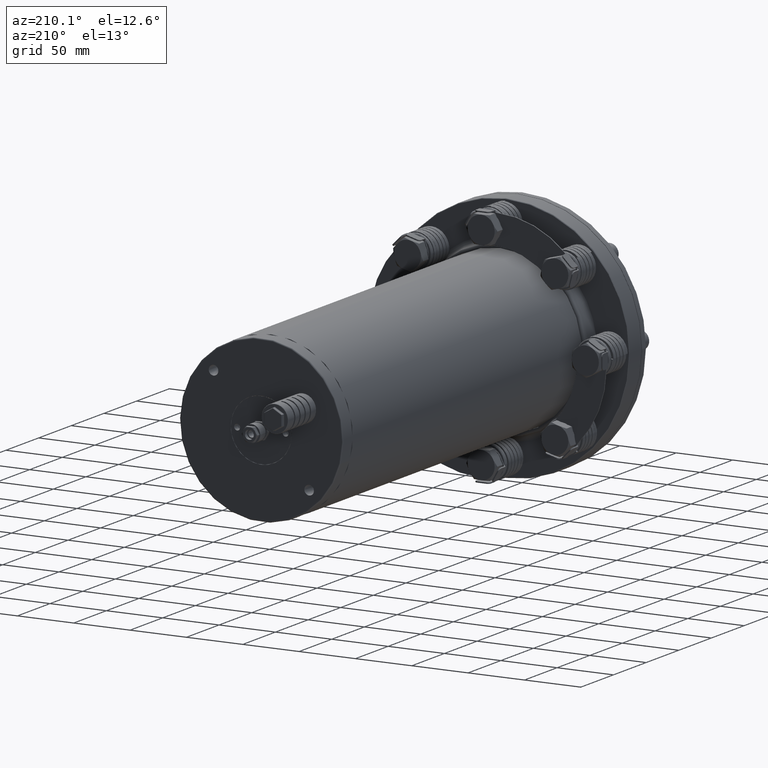
[diagram: clean part render]
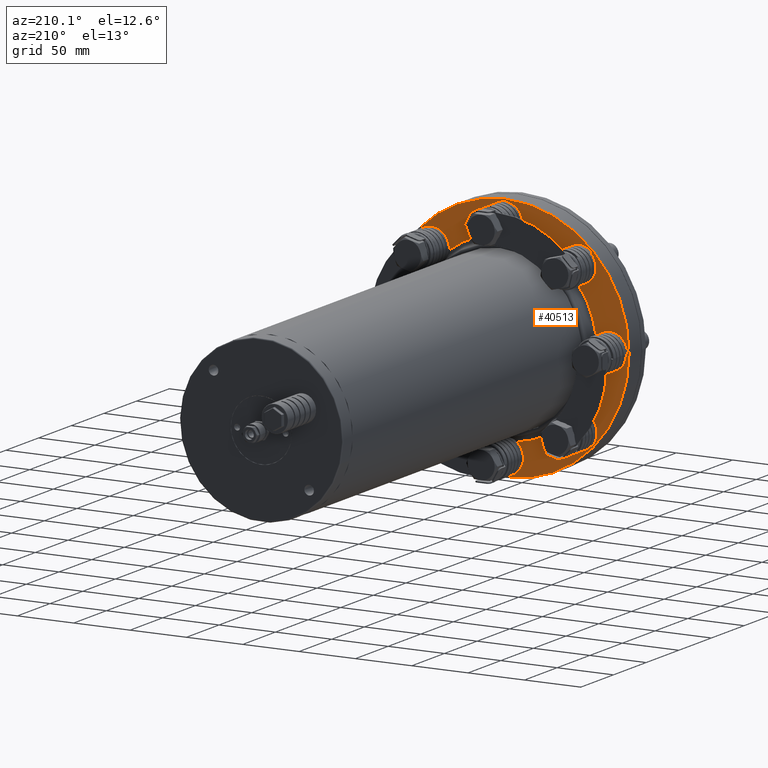
[diagram: same view with one face highlighted and labeled with its STEP entity id]
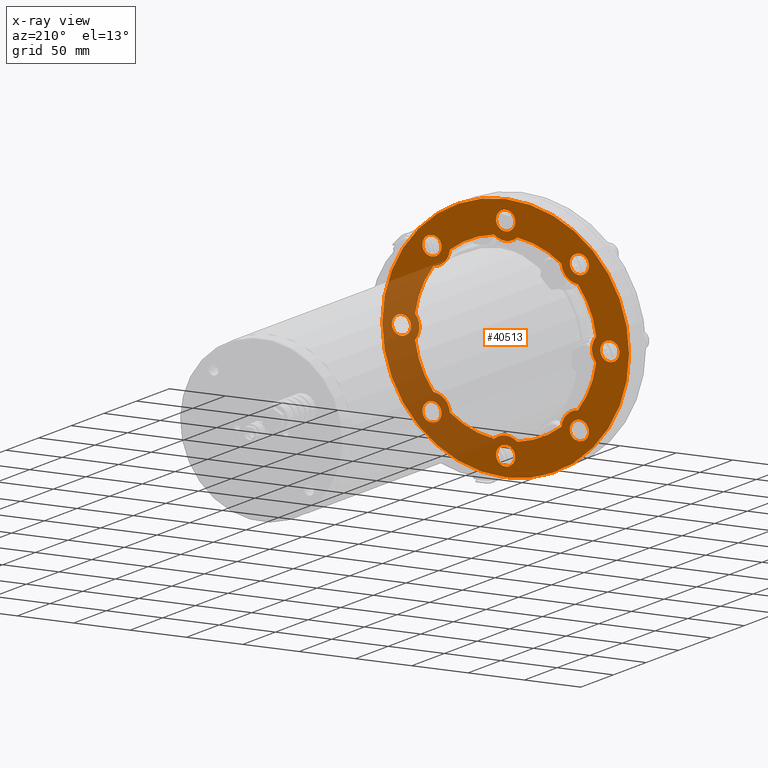
[diagram: x-ray of the same camera — body ghosted, the highlighted face saturated]
A machine part, auxiliary view. The second image highlights one B-rep face of the part: STEP entity #40513.
The next image is the same camera in x-ray: the body ghosted, the highlighted face saturated — about 28% of this face is hidden behind the body in this view.
In plain terms, the highlighted planar face has unit normal (0, 1, 0).
Its self-contained STEP definition (entity closure, byte-faithful):
#6 = CARTESIAN_POINT ( 'NONE',  ( 65.40737725975620300, 25.00000000000000000, -56.90737725975510800 ) ) ;
#15 = CARTESIAN_POINT ( 'NONE',  ( -1.303471104155284600E-012, 25.00000000000000000, 101.0000000000000000 ) ) ;
#23 = CARTESIAN_POINT ( 'NONE',  ( 65.40737725975481000, 25.00000000000000000, 73.90737725975640200 ) ) ;
#29 = CARTESIAN_POINT ( 'NONE',  ( 92.50000000000000000, 25.00000000000000000, 8.500000000000985900 ) ) ;
#30 = CARTESIAN_POINT ( 'NONE',  ( 0.0000000000000000000, 25.00000000000000000, -109.5000000000000000 ) ) ;
#36 = CARTESIAN_POINT ( 'NONE',  ( 49.45699317056620000, 25.00000000000000000, -64.14831117439159400 ) ) ;
#74 = CARTESIAN_POINT ( 'NONE',  ( 65.40737725975620300, 25.00000000000000000, -73.90737725975510800 ) ) ;
#77 = CARTESIAN_POINT ( 'NONE',  ( 64.14831117439250400, 25.00000000000000000, -49.45699317056499900 ) ) ;
#79 = CARTESIAN_POINT ( 'NONE',  ( 6.661338147750940300E-013, 25.00000000000000000, -76.50000000000000000 ) ) ;
#82 = CARTESIAN_POINT ( 'NONE',  ( 80.33108108108099500, 25.00000000000000000, 10.38833058507454000 ) ) ;
#149 = CARTESIAN_POINT ( 'NONE',  ( -64.14831117439179300, 25.00000000000000000, -49.45699317056590200 ) ) ;
#151 = CARTESIAN_POINT ( 'NONE',  ( -92.50000000000000000, 25.00000000000000000, 8.499999999999660700 ) ) ;
#2220 = VERTEX_POINT ( 'NONE', #50755 ) ;
#2224 = VERTEX_POINT ( 'NONE', #50752 ) ;
#2244 = VERTEX_POINT ( 'NONE', #50742 ) ;
#2258 = VERTEX_POINT ( 'NONE', #50737 ) ;
#2274 = VERTEX_POINT ( 'NONE', #50730 ) ;
#2282 = VERTEX_POINT ( 'NONE', #50726 ) ;
#2293 = VERTEX_POINT ( 'NONE', #50720 ) ;
#2320 = VERTEX_POINT ( 'NONE', #50851 ) ;
#2322 = VERTEX_POINT ( 'NONE', #50850 ) ;
#2353 = VERTEX_POINT ( 'NONE', #51002 ) ;
#2409 = VERTEX_POINT ( 'NONE', #23 ) ;
#2419 = VERTEX_POINT ( 'NONE', #30 ) ;
#2421 = VERTEX_POINT ( 'NONE', #29 ) ;
#2473 = VERTEX_POINT ( 'NONE', #6 ) ;
#2487 = VERTEX_POINT ( 'NONE', #15 ) ;
#2501 = VERTEX_POINT ( 'NONE', #36 ) ;
#2521 = VERTEX_POINT ( 'NONE', #74 ) ;
#2526 = VERTEX_POINT ( 'NONE', #77 ) ;
#2530 = VERTEX_POINT ( 'NONE', #79 ) ;
#2536 = VERTEX_POINT ( 'NONE', #82 ) ;
#2667 = VERTEX_POINT ( 'NONE', #149 ) ;
#2675 = VERTEX_POINT ( 'NONE', #151 ) ;
#5918 = FACE_BOUND ( 'NONE', #63173, .T. ) ;
#5923 = FACE_BOUND ( 'NONE', #63328, .T. ) ;
#5925 = FACE_BOUND ( 'NONE', #63325, .T. ) ;
#5927 = FACE_BOUND ( 'NONE', #63315, .T. ) ;
#5929 = FACE_OUTER_BOUND ( 'NONE', #63321, .T. ) ;
#5931 = FACE_BOUND ( 'NONE', #63326, .T. ) ;
#5934 = FACE_BOUND ( 'NONE', #63324, .T. ) ;
#5936 = FACE_BOUND ( 'NONE', #63327, .T. ) ;
#5938 = FACE_BOUND ( 'NONE', #63168, .T. ) ;
#5940 = FACE_BOUND ( 'NONE', #63329, .T. ) ;
#6728 = AXIS2_PLACEMENT_3D ( 'NONE', #29643, #29644, #29645 ) ;
#6730 = AXIS2_PLACEMENT_3D ( 'NONE', #29646, #29647, #29648 ) ;
#6731 = AXIS2_PLACEMENT_3D ( 'NONE', #29659, #29660, #29661 ) ;
#6732 = AXIS2_PLACEMENT_3D ( 'NONE', #29650, #29654, #29655 ) ;
#6734 = AXIS2_PLACEMENT_3D ( 'NONE', #29662, #29663, #29664 ) ;
#6738 = AXIS2_PLACEMENT_3D ( 'NONE', #29687, #29688, #29689 ) ;
#6744 = AXIS2_PLACEMENT_3D ( 'NONE', #29704, #29705, #29706 ) ;
#6745 = AXIS2_PLACEMENT_3D ( 'NONE', #29721, #29723, #29724 ) ;
#6749 = AXIS2_PLACEMENT_3D ( 'NONE', #30153, #30154, #30155 ) ;
#6750 = AXIS2_PLACEMENT_3D ( 'NONE', #30132, #30133, #30134 ) ;
#6757 = AXIS2_PLACEMENT_3D ( 'NONE', #30193, #30195, #30196 ) ;
#6758 = AXIS2_PLACEMENT_3D ( 'NONE', #30190, #30191, #30192 ) ;
#6760 = AXIS2_PLACEMENT_3D ( 'NONE', #30184, #30198, #30199 ) ;
#6761 = AXIS2_PLACEMENT_3D ( 'NONE', #30194, #30200, #30201 ) ;
#6765 = AXIS2_PLACEMENT_3D ( 'NONE', #30306, #30313, #30314 ) ;
#6766 = AXIS2_PLACEMENT_3D ( 'NONE', #30309, #30315, #30316 ) ;
#6768 = AXIS2_PLACEMENT_3D ( 'NONE', #30323, #30324, #30325 ) ;
#6769 = AXIS2_PLACEMENT_3D ( 'NONE', #30330, #30331, #30332 ) ;
#6770 = AXIS2_PLACEMENT_3D ( 'NONE', #30326, #30328, #30329 ) ;
#6773 = AXIS2_PLACEMENT_3D ( 'NONE', #30375, #30377, #30378 ) ;
#6774 = AXIS2_PLACEMENT_3D ( 'NONE', #30372, #30379, #30380 ) ;
#6775 = AXIS2_PLACEMENT_3D ( 'NONE', #30422, #30423, #30424 ) ;
#6776 = AXIS2_PLACEMENT_3D ( 'NONE', #30438, #30439, #30440 ) ;
#6777 = AXIS2_PLACEMENT_3D ( 'NONE', #30384, #30429, #30430 ) ;
#6780 = AXIS2_PLACEMENT_3D ( 'NONE', #30441, #30446, #30447 ) ;
#6783 = AXIS2_PLACEMENT_3D ( 'NONE', #30452, #30453, #30454 ) ;
#6787 = AXIS2_PLACEMENT_3D ( 'NONE', #30502, #30508, #30509 ) ;
#6793 = AXIS2_PLACEMENT_3D ( 'NONE', #23311, #23322, #23323 ) ;
#6798 = AXIS2_PLACEMENT_3D ( 'NONE', #73360, #73364, #73366 ) ;
#6801 = AXIS2_PLACEMENT_3D ( 'NONE', #73759, #73859, #73861 ) ;
#6802 = AXIS2_PLACEMENT_3D ( 'NONE', #73852, #73866, #73868 ) ;
#6857 = AXIS2_PLACEMENT_3D ( 'NONE', #29013, #29021, #29022 ) ;
#6859 = AXIS2_PLACEMENT_3D ( 'NONE', #29000, #29011, #29012 ) ;
#6860 = AXIS2_PLACEMENT_3D ( 'NONE', #29003, #29014, #29015 ) ;
#6870 = AXIS2_PLACEMENT_3D ( 'NONE', #67053, #67054, #67055 ) ;
#8780 = ORIENTED_EDGE ( 'NONE', *, *, #59350, .T. ) ;
#8788 = ORIENTED_EDGE ( 'NONE', *, *, #59354, .T. ) ;
#8790 = ORIENTED_EDGE ( 'NONE', *, *, #59360, .F. ) ;
#8792 = ORIENTED_EDGE ( 'NONE', *, *, #59701, .F. ) ;
#8793 = ORIENTED_EDGE ( 'NONE', *, *, #59365, .F. ) ;
#8796 = ORIENTED_EDGE ( 'NONE', *, *, #59272, .T. ) ;
#8797 = ORIENTED_EDGE ( 'NONE', *, *, #59332, .F. ) ;
#8798 = ORIENTED_EDGE ( 'NONE', *, *, #59321, .F. ) ;
#8803 = ORIENTED_EDGE ( 'NONE', *, *, #59344, .F. ) ;
#8805 = ORIENTED_EDGE ( 'NONE', *, *, #59282, .F. ) ;
#8806 = ORIENTED_EDGE ( 'NONE', *, *, #59270, .F. ) ;
#8807 = ORIENTED_EDGE ( 'NONE', *, *, #59351, .F. ) ;
#8810 = ORIENTED_EDGE ( 'NONE', *, *, #59697, .F. ) ;
#8811 = ORIENTED_EDGE ( 'NONE', *, *, #59329, .F. ) ;
#8815 = ORIENTED_EDGE ( 'NONE', *, *, #59356, .F. ) ;
#8817 = ORIENTED_EDGE ( 'NONE', *, *, #59339, .F. ) ;
#8819 = ORIENTED_EDGE ( 'NONE', *, *, #59288, .F. ) ;
#8822 = ORIENTED_EDGE ( 'NONE', *, *, #59294, .F. ) ;
#8823 = ORIENTED_EDGE ( 'NONE', *, *, #59728, .F. ) ;
#8824 = ORIENTED_EDGE ( 'NONE', *, *, #59698, .F. ) ;
#8825 = ORIENTED_EDGE ( 'NONE', *, *, #59542, .F. ) ;
#8826 = ORIENTED_EDGE ( 'NONE', *, *, #59330, .T. ) ;
#8828 = ORIENTED_EDGE ( 'NONE', *, *, #59338, .T. ) ;
#8829 = ORIENTED_EDGE ( 'NONE', *, *, #59342, .F. ) ;
#8830 = ORIENTED_EDGE ( 'NONE', *, *, #59424, .F. ) ;
#8831 = ORIENTED_EDGE ( 'NONE', *, *, #59345, .F. ) ;
#8863 = ORIENTED_EDGE ( 'NONE', *, *, #59267, .F. ) ;
#8864 = ORIENTED_EDGE ( 'NONE', *, *, #59363, .T. ) ;
#8881 = ORIENTED_EDGE ( 'NONE', *, *, #59526, .F. ) ;
#8886 = ORIENTED_EDGE ( 'NONE', *, *, #59313, .T. ) ;
#8887 = ORIENTED_EDGE ( 'NONE', *, *, #59372, .T. ) ;
#9205 = ORIENTED_EDGE ( 'NONE', *, *, #59266, .F. ) ;
#9209 = ORIENTED_EDGE ( 'NONE', *, *, #59331, .T. ) ;
#9210 = ORIENTED_EDGE ( 'NONE', *, *, #59273, .T. ) ;
#9211 = ORIENTED_EDGE ( 'NONE', *, *, #59541, .F. ) ;
#11846 = CARTESIAN_POINT ( 'NONE',  ( 110.0000000000000000, 25.00000000000000000, 0.0000000000000000000 ) ) ;
#11871 = PLANE ( 'NONE',  #70590 ) ;
#11874 = DIRECTION ( 'NONE',  ( 0.0000000000000000000, 1.000000000000000000, 0.0000000000000000000 ) ) ;
#11875 = DIRECTION ( 'NONE',  ( 0.0000000000000000000, 0.0000000000000000000, 1.000000000000000000 ) ) ;
#23311 = CARTESIAN_POINT ( 'NONE',  ( 6.661338147750940300E-013, 25.00000000000000000, -92.50000000000000000 ) ) ;
#23322 = DIRECTION ( 'NONE',  ( -0.0000000000000000000, -1.000000000000000000, -0.0000000000000000000 ) ) ;
#23323 = DIRECTION ( 'NONE',  ( 0.0000000000000000000, 0.0000000000000000000, 1.000000000000000000 ) ) ;
#29000 = CARTESIAN_POINT ( 'NONE',  ( -65.40737725975530700, 25.00000000000000000, -65.40737725975601800 ) ) ;
#29003 = CARTESIAN_POINT ( 'NONE',  ( 92.50000000000000000, 25.00000000000000000, 9.853229343548260300E-013 ) ) ;
#29011 = DIRECTION ( 'NONE',  ( 0.0000000000000000000, 1.000000000000000000, 0.0000000000000000000 ) ) ;
#29012 = DIRECTION ( 'NONE',  ( 0.0000000000000000000, 0.0000000000000000000, 1.000000000000000000 ) ) ;
#29013 = CARTESIAN_POINT ( 'NONE',  ( 65.40737725975620300, 25.00000000000000000, -65.40737725975510800 ) ) ;
#29014 = DIRECTION ( 'NONE',  ( 0.0000000000000000000, 1.000000000000000000, 0.0000000000000000000 ) ) ;
#29015 = DIRECTION ( 'NONE',  ( 0.0000000000000000000, 0.0000000000000000000, 1.000000000000000000 ) ) ;
#29021 = DIRECTION ( 'NONE',  ( 0.0000000000000000000, 1.000000000000000000, 0.0000000000000000000 ) ) ;
#29022 = DIRECTION ( 'NONE',  ( 0.0000000000000000000, 0.0000000000000000000, 1.000000000000000000 ) ) ;
#29643 = CARTESIAN_POINT ( 'NONE',  ( -1.304512053934559900E-012, 25.00000000000000000, 92.50000000000000000 ) ) ;
#29644 = DIRECTION ( 'NONE',  ( 0.0000000000000000000, 1.000000000000000000, 0.0000000000000000000 ) ) ;
#29645 = DIRECTION ( 'NONE',  ( 0.0000000000000000000, 0.0000000000000000000, 1.000000000000000000 ) ) ;
#29646 = CARTESIAN_POINT ( 'NONE',  ( 6.661338147750940300E-013, 25.00000000000000000, -92.50000000000000000 ) ) ;
#29647 = DIRECTION ( 'NONE',  ( -0.0000000000000000000, -1.000000000000000000, -0.0000000000000000000 ) ) ;
#29648 = DIRECTION ( 'NONE',  ( 3.552713678800497800E-015, 0.0000000000000000000, 1.000000000000000000 ) ) ;
#29650 = CARTESIAN_POINT ( 'NONE',  ( 92.50000000000000000, 25.00000000000000000, 9.853229343548260300E-013 ) ) ;
#29654 = DIRECTION ( 'NONE',  ( -0.0000000000000000000, -1.000000000000000000, -0.0000000000000000000 ) ) ;
#29655 = DIRECTION ( 'NONE',  ( 8.673617379884035500E-016, 0.0000000000000000000, 1.000000000000000000 ) ) ;
#29659 = CARTESIAN_POINT ( 'NONE',  ( 0.0000000000000000000, 25.00000000000000000, 0.0000000000000000000 ) ) ;
#29660 = DIRECTION ( 'NONE',  ( -0.0000000000000000000, -1.000000000000000000, -0.0000000000000000000 ) ) ;
#29661 = DIRECTION ( 'NONE',  ( 0.0000000000000000000, 0.0000000000000000000, 1.000000000000000000 ) ) ;
#29662 = CARTESIAN_POINT ( 'NONE',  ( 0.0000000000000000000, 25.00000000000000000, 0.0000000000000000000 ) ) ;
#29663 = DIRECTION ( 'NONE',  ( 0.0000000000000000000, 1.000000000000000000, 0.0000000000000000000 ) ) ;
#29664 = DIRECTION ( 'NONE',  ( 0.0000000000000000000, 0.0000000000000000000, 1.000000000000000000 ) ) ;
#29687 = CARTESIAN_POINT ( 'NONE',  ( 65.40737725975481000, 25.00000000000000000, 65.40737725975640200 ) ) ;
#29688 = DIRECTION ( 'NONE',  ( -0.0000000000000000000, -1.000000000000000000, -0.0000000000000000000 ) ) ;
#29689 = DIRECTION ( 'NONE',  ( -8.673617379884035500E-016, 0.0000000000000000000, 1.000000000000000000 ) ) ;
#29704 = CARTESIAN_POINT ( 'NONE',  ( 6.661338147750940300E-013, 25.00000000000000000, -92.50000000000000000 ) ) ;
#29705 = DIRECTION ( 'NONE',  ( 0.0000000000000000000, 1.000000000000000000, 0.0000000000000000000 ) ) ;
#29706 = DIRECTION ( 'NONE',  ( 0.0000000000000000000, 0.0000000000000000000, 1.000000000000000000 ) ) ;
#29721 = CARTESIAN_POINT ( 'NONE',  ( 92.50000000000000000, 25.00000000000000000, 9.853229343548260300E-013 ) ) ;
#29723 = DIRECTION ( 'NONE',  ( 0.0000000000000000000, 1.000000000000000000, 0.0000000000000000000 ) ) ;
#29724 = DIRECTION ( 'NONE',  ( 0.0000000000000000000, 0.0000000000000000000, 1.000000000000000000 ) ) ;
#30132 = CARTESIAN_POINT ( 'NONE',  ( 0.0000000000000000000, 25.00000000000000000, 0.0000000000000000000 ) ) ;
#30133 = DIRECTION ( 'NONE',  ( -0.0000000000000000000, -1.000000000000000000, -0.0000000000000000000 ) ) ;
#30134 = DIRECTION ( 'NONE',  ( 0.0000000000000000000, 0.0000000000000000000, 1.000000000000000000 ) ) ;
#30153 = CARTESIAN_POINT ( 'NONE',  ( 65.40737725975481000, 25.00000000000000000, 65.40737725975640200 ) ) ;
#30154 = DIRECTION ( 'NONE',  ( 0.0000000000000000000, 1.000000000000000000, 0.0000000000000000000 ) ) ;
#30155 = DIRECTION ( 'NONE',  ( 0.0000000000000000000, 0.0000000000000000000, 1.000000000000000000 ) ) ;
#30184 = CARTESIAN_POINT ( 'NONE',  ( 0.0000000000000000000, 25.00000000000000000, 0.0000000000000000000 ) ) ;
#30190 = CARTESIAN_POINT ( 'NONE',  ( -92.50000000000000000, 25.00000000000000000, -3.400058012914539900E-013 ) ) ;
#30191 = DIRECTION ( 'NONE',  ( 0.0000000000000000000, 1.000000000000000000, 0.0000000000000000000 ) ) ;
#30192 = DIRECTION ( 'NONE',  ( 0.0000000000000000000, 0.0000000000000000000, 1.000000000000000000 ) ) ;
#30193 = CARTESIAN_POINT ( 'NONE',  ( 0.0000000000000000000, 25.00000000000000000, 0.0000000000000000000 ) ) ;
#30194 = CARTESIAN_POINT ( 'NONE',  ( -65.40737725975530700, 25.00000000000000000, -65.40737725975601800 ) ) ;
#30195 = DIRECTION ( 'NONE',  ( -0.0000000000000000000, -1.000000000000000000, -0.0000000000000000000 ) ) ;
#30196 = DIRECTION ( 'NONE',  ( 0.0000000000000000000, 0.0000000000000000000, 1.000000000000000000 ) ) ;
#30198 = DIRECTION ( 'NONE',  ( 0.0000000000000000000, 1.000000000000000000, 0.0000000000000000000 ) ) ;
#30199 = DIRECTION ( 'NONE',  ( 0.0000000000000000000, 0.0000000000000000000, 1.000000000000000000 ) ) ;
#30200 = DIRECTION ( 'NONE',  ( 0.0000000000000000000, 1.000000000000000000, 0.0000000000000000000 ) ) ;
#30201 = DIRECTION ( 'NONE',  ( 0.0000000000000000000, 0.0000000000000000000, 1.000000000000000000 ) ) ;
#30306 = CARTESIAN_POINT ( 'NONE',  ( 0.0000000000000000000, 25.00000000000000000, 0.0000000000000000000 ) ) ;
#30309 = CARTESIAN_POINT ( 'NONE',  ( -65.40737725975580500, 25.00000000000000000, 65.40737725975550600 ) ) ;
#30313 = DIRECTION ( 'NONE',  ( -0.0000000000000000000, -1.000000000000000000, -0.0000000000000000000 ) ) ;
#30314 = DIRECTION ( 'NONE',  ( 0.0000000000000000000, 0.0000000000000000000, 1.000000000000000000 ) ) ;
#30315 = DIRECTION ( 'NONE',  ( 0.0000000000000000000, 1.000000000000000000, 0.0000000000000000000 ) ) ;
#30316 = DIRECTION ( 'NONE',  ( 0.0000000000000000000, 0.0000000000000000000, 1.000000000000000000 ) ) ;
#30323 = CARTESIAN_POINT ( 'NONE',  ( -65.40737725975530700, 25.00000000000000000, -65.40737725975601800 ) ) ;
#30324 = DIRECTION ( 'NONE',  ( -0.0000000000000000000, -1.000000000000000000, -0.0000000000000000000 ) ) ;
#30325 = DIRECTION ( 'NONE',  ( 0.0000000000000000000, 0.0000000000000000000, 1.000000000000000000 ) ) ;
#30326 = CARTESIAN_POINT ( 'NONE',  ( -65.40737725975580500, 25.00000000000000000, 65.40737725975550600 ) ) ;
#30328 = DIRECTION ( 'NONE',  ( -0.0000000000000000000, -1.000000000000000000, -0.0000000000000000000 ) ) ;
#30329 = DIRECTION ( 'NONE',  ( -2.602085213965210600E-015, 0.0000000000000000000, 1.000000000000000000 ) ) ;
#30330 = CARTESIAN_POINT ( 'NONE',  ( -92.50000000000000000, 25.00000000000000000, -3.400058012914539900E-013 ) ) ;
#30331 = DIRECTION ( 'NONE',  ( -0.0000000000000000000, -1.000000000000000000, -0.0000000000000000000 ) ) ;
#30332 = DIRECTION ( 'NONE',  ( 2.602085213965210600E-015, 0.0000000000000000000, 1.000000000000000000 ) ) ;
#30372 = CARTESIAN_POINT ( 'NONE',  ( -92.50000000000000000, 25.00000000000000000, -3.400058012914539900E-013 ) ) ;
#30375 = CARTESIAN_POINT ( 'NONE',  ( 0.0000000000000000000, 25.00000000000000000, 0.0000000000000000000 ) ) ;
#30377 = DIRECTION ( 'NONE',  ( -0.0000000000000000000, -1.000000000000000000, -0.0000000000000000000 ) ) ;
#30378 = DIRECTION ( 'NONE',  ( 1.776356839400250500E-015, 0.0000000000000000000, 1.000000000000000000 ) ) ;
#30379 = DIRECTION ( 'NONE',  ( 0.0000000000000000000, 1.000000000000000000, 0.0000000000000000000 ) ) ;
#30380 = DIRECTION ( 'NONE',  ( 0.0000000000000000000, 0.0000000000000000000, 1.000000000000000000 ) ) ;
#30384 = CARTESIAN_POINT ( 'NONE',  ( -65.40737725975580500, 25.00000000000000000, 65.40737725975550600 ) ) ;
#30422 = CARTESIAN_POINT ( 'NONE',  ( 0.0000000000000000000, 25.00000000000000000, 0.0000000000000000000 ) ) ;
#30423 = DIRECTION ( 'NONE',  ( -0.0000000000000000000, -1.000000000000000000, -0.0000000000000000000 ) ) ;
#30424 = DIRECTION ( 'NONE',  ( 1.776356839400250500E-015, 0.0000000000000000000, 1.000000000000000000 ) ) ;
#30429 = DIRECTION ( 'NONE',  ( 0.0000000000000000000, 1.000000000000000000, 0.0000000000000000000 ) ) ;
#30430 = DIRECTION ( 'NONE',  ( 0.0000000000000000000, 0.0000000000000000000, 1.000000000000000000 ) ) ;
#30438 = CARTESIAN_POINT ( 'NONE',  ( 65.40737725975620300, 25.00000000000000000, -65.40737725975510800 ) ) ;
#30439 = DIRECTION ( 'NONE',  ( -0.0000000000000000000, -1.000000000000000000, -0.0000000000000000000 ) ) ;
#30440 = DIRECTION ( 'NONE',  ( 0.0000000000000000000, 0.0000000000000000000, 1.000000000000000000 ) ) ;
#30441 = CARTESIAN_POINT ( 'NONE',  ( 0.0000000000000000000, 25.00000000000000000, 0.0000000000000000000 ) ) ;
#30446 = DIRECTION ( 'NONE',  ( -0.0000000000000000000, -1.000000000000000000, -0.0000000000000000000 ) ) ;
#30447 = DIRECTION ( 'NONE',  ( 0.0000000000000000000, 0.0000000000000000000, 1.000000000000000000 ) ) ;
#30452 = CARTESIAN_POINT ( 'NONE',  ( 65.40737725975481000, 25.00000000000000000, 65.40737725975640200 ) ) ;
#30453 = DIRECTION ( 'NONE',  ( 0.0000000000000000000, 1.000000000000000000, 0.0000000000000000000 ) ) ;
#30454 = DIRECTION ( 'NONE',  ( 0.0000000000000000000, 0.0000000000000000000, 1.000000000000000000 ) ) ;
#30502 = CARTESIAN_POINT ( 'NONE',  ( 0.0000000000000000000, 25.00000000000000000, 0.0000000000000000000 ) ) ;
#30508 = DIRECTION ( 'NONE',  ( -0.0000000000000000000, -1.000000000000000000, -0.0000000000000000000 ) ) ;
#30509 = DIRECTION ( 'NONE',  ( 0.0000000000000000000, 0.0000000000000000000, 1.000000000000000000 ) ) ;
#40513 = ADVANCED_FACE ( 'NONE', ( #5918, #5929, #5934, #5938, #5925, #5923, #5931, #5936, #5940, #5927 ), #11871, .T. ) ;
#49764 = VERTEX_POINT ( 'NONE', #71422 ) ;
#49788 = VERTEX_POINT ( 'NONE', #71470 ) ;
#49819 = VERTEX_POINT ( 'NONE', #71531 ) ;
#49825 = VERTEX_POINT ( 'NONE', #71543 ) ;
#49837 = VERTEX_POINT ( 'NONE', #71567 ) ;
#49845 = VERTEX_POINT ( 'NONE', #71581 ) ;
#49869 = VERTEX_POINT ( 'NONE', #71629 ) ;
#49986 = VERTEX_POINT ( 'NONE', #71848 ) ;
#49989 = VERTEX_POINT ( 'NONE', #71854 ) ;
#50008 = VERTEX_POINT ( 'NONE', #71891 ) ;
#50012 = VERTEX_POINT ( 'NONE', #71899 ) ;
#50419 = VERTEX_POINT ( 'NONE', #72692 ) ;
#50424 = VERTEX_POINT ( 'NONE', #72702 ) ;
#50720 = CARTESIAN_POINT ( 'NONE',  ( -49.45699317056569600, 25.00000000000000000, 64.14831117439200600 ) ) ;
#50726 = CARTESIAN_POINT ( 'NONE',  ( 6.661338147750940300E-013, 25.00000000000000000, -101.0000000000000000 ) ) ;
#50730 = CARTESIAN_POINT ( 'NONE',  ( -80.33108108108109500, 25.00000000000000000, 10.38833058507340100 ) ) ;
#50737 = CARTESIAN_POINT ( 'NONE',  ( 10.38833058507256100, 25.00000000000000000, 80.33108108108119400 ) ) ;
#50742 = CARTESIAN_POINT ( 'NONE',  ( -49.45699317056519800, 25.00000000000000000, -64.14831117439229000 ) ) ;
#50752 = CARTESIAN_POINT ( 'NONE',  ( 80.33108108108119400, 25.00000000000000000, -10.38833058507284000 ) ) ;
#50755 = CARTESIAN_POINT ( 'NONE',  ( -65.40737725975580500, 25.00000000000000000, 56.90737725975551300 ) ) ;
#50850 = CARTESIAN_POINT ( 'NONE',  ( -10.38833058507312000, 25.00000000000000000, -80.33108108108119400 ) ) ;
#50851 = CARTESIAN_POINT ( 'NONE',  ( 92.50000000000000000, 25.00000000000000000, -8.499999999999015900 ) ) ;
#51002 = CARTESIAN_POINT ( 'NONE',  ( 1.344049862064220100E-014, 25.00000000000000000, 109.5000000000000000 ) ) ;
#59266 = EDGE_CURVE ( 'NONE', #2487, #50424, #74949, .T. ) ;
#59267 = EDGE_CURVE ( 'NONE', #49819, #2530, #74951, .T. ) ;
#59270 = EDGE_CURVE ( 'NONE', #2536, #2224, #74953, .T. ) ;
#59272 = EDGE_CURVE ( 'NONE', #49845, #2293, #74955, .T. ) ;
#59273 = EDGE_CURVE ( 'NONE', #2353, #2419, #74956, .T. ) ;
#59282 = EDGE_CURVE ( 'NONE', #50419, #50012, #74969, .T. ) ;
#59288 = EDGE_CURVE ( 'NONE', #50008, #2282, #74977, .T. ) ;
#59294 = EDGE_CURVE ( 'NONE', #2421, #2320, #74981, .T. ) ;
#59313 = EDGE_CURVE ( 'NONE', #50419, #2258, #74993, .T. ) ;
#59321 = EDGE_CURVE ( 'NONE', #49869, #2409, #75003, .T. ) ;
#59329 = EDGE_CURVE ( 'NONE', #2675, #49788, #75010, .T. ) ;
#59330 = EDGE_CURVE ( 'NONE', #49764, #2667, #75012, .T. ) ;
#59331 = EDGE_CURVE ( 'NONE', #2419, #2353, #75014, .T. ) ;
#59332 = EDGE_CURVE ( 'NONE', #49837, #49986, #75015, .T. ) ;
#59338 = EDGE_CURVE ( 'NONE', #49825, #2274, #75020, .T. ) ;
#59339 = EDGE_CURVE ( 'NONE', #2220, #49989, #75022, .T. ) ;
#59342 = EDGE_CURVE ( 'NONE', #2244, #2667, #75026, .T. ) ;
#59344 = EDGE_CURVE ( 'NONE', #49825, #2293, #75027, .T. ) ;
#59345 = EDGE_CURVE ( 'NONE', #49764, #2274, #75028, .T. ) ;
#59350 = EDGE_CURVE ( 'NONE', #2536, #50012, #75035, .T. ) ;
#59351 = EDGE_CURVE ( 'NONE', #49788, #2675, #75036, .T. ) ;
#59354 = EDGE_CURVE ( 'NONE', #2526, #2224, #75038, .T. ) ;
#59356 = EDGE_CURVE ( 'NONE', #49989, #2220, #75041, .T. ) ;
#59360 = EDGE_CURVE ( 'NONE', #2526, #2501, #75046, .T. ) ;
#59363 = EDGE_CURVE ( 'NONE', #49819, #2501, #75049, .T. ) ;
#59365 = EDGE_CURVE ( 'NONE', #2409, #49869, #75050, .T. ) ;
#59372 = EDGE_CURVE ( 'NONE', #2244, #2322, #75057, .T. ) ;
#59424 = EDGE_CURVE ( 'NONE', #2530, #2322, #75074, .T. ) ;
#59526 = EDGE_CURVE ( 'NONE', #49845, #2258, #75098, .T. ) ;
#59541 = EDGE_CURVE ( 'NONE', #50424, #2487, #75103, .T. ) ;
#59542 = EDGE_CURVE ( 'NONE', #2282, #50008, #75105, .T. ) ;
#59697 = EDGE_CURVE ( 'NONE', #49986, #49837, #62298, .T. ) ;
#59698 = EDGE_CURVE ( 'NONE', #2320, #2421, #62300, .T. ) ;
#59701 = EDGE_CURVE ( 'NONE', #2521, #2473, #62304, .T. ) ;
#59728 = EDGE_CURVE ( 'NONE', #2473, #2521, #62324, .T. ) ;
#62298 = CIRCLE ( 'NONE', #6859, 8.500000000000000000 ) ;
#62300 = CIRCLE ( 'NONE', #6860, 8.500000000000000000 ) ;
#62304 = CIRCLE ( 'NONE', #6857, 8.500000000000000000 ) ;
#62324 = CIRCLE ( 'NONE', #6870, 8.500000000000000000 ) ;
#63168 = EDGE_LOOP ( 'NONE', ( #8798, #8793 ) ) ;
#63173 = EDGE_LOOP ( 'NONE', ( #8788, #8806, #8780, #8805, #8886, #8881, #8796, #8803, #8828, #8831, #8826, #8829, #8887, #8830, #8863, #8864, #8790 ) ) ;
#63315 = EDGE_LOOP ( 'NONE', ( #8824, #8822 ) ) ;
#63321 = EDGE_LOOP ( 'NONE', ( #9209, #9210 ) ) ;
#63324 = EDGE_LOOP ( 'NONE', ( #9211, #9205 ) ) ;
#63325 = EDGE_LOOP ( 'NONE', ( #8817, #8815 ) ) ;
#63326 = EDGE_LOOP ( 'NONE', ( #8810, #8797 ) ) ;
#63327 = EDGE_LOOP ( 'NONE', ( #8825, #8819 ) ) ;
#63328 = EDGE_LOOP ( 'NONE', ( #8807, #8811 ) ) ;
#63329 = EDGE_LOOP ( 'NONE', ( #8792, #8823 ) ) ;
#67053 = CARTESIAN_POINT ( 'NONE',  ( 65.40737725975620300, 25.00000000000000000, -65.40737725975510800 ) ) ;
#67054 = DIRECTION ( 'NONE',  ( 0.0000000000000000000, 1.000000000000000000, 0.0000000000000000000 ) ) ;
#67055 = DIRECTION ( 'NONE',  ( 0.0000000000000000000, 0.0000000000000000000, 1.000000000000000000 ) ) ;
#70590 = AXIS2_PLACEMENT_3D ( 'NONE', #11846, #11874, #11875 ) ;
#71422 = CARTESIAN_POINT ( 'NONE',  ( -80.33108108108099500, 25.00000000000000000, -10.38833058507396100 ) ) ;
#71470 = CARTESIAN_POINT ( 'NONE',  ( -92.50000000000000000, 25.00000000000000000, -8.500000000000341100 ) ) ;
#71531 = CARTESIAN_POINT ( 'NONE',  ( 10.38833058507428000, 25.00000000000000000, -80.33108108108099500 ) ) ;
#71543 = CARTESIAN_POINT ( 'NONE',  ( -64.14831117439209200, 25.00000000000000000, 49.45699317056549700 ) ) ;
#71567 = CARTESIAN_POINT ( 'NONE',  ( -65.40737725975530700, 25.00000000000000000, -56.90737725975601100 ) ) ;
#71581 = CARTESIAN_POINT ( 'NONE',  ( -10.38833058507482200, 25.00000000000000000, 80.33108108108091000 ) ) ;
#71629 = CARTESIAN_POINT ( 'NONE',  ( 65.40737725975481000, 25.00000000000000000, 56.90737725975640200 ) ) ;
#71848 = CARTESIAN_POINT ( 'NONE',  ( -65.40737725975530700, 25.00000000000000000, -73.90737725975601800 ) ) ;
#71854 = CARTESIAN_POINT ( 'NONE',  ( -65.40737725975580500, 25.00000000000000000, 73.90737725975552100 ) ) ;
#71891 = CARTESIAN_POINT ( 'NONE',  ( 6.671747645543692900E-013, 25.00000000000000000, -83.99999999999998600 ) ) ;
#71899 = CARTESIAN_POINT ( 'NONE',  ( 64.14831117439139500, 25.00000000000000000, 49.45699317056639900 ) ) ;
#72692 = CARTESIAN_POINT ( 'NONE',  ( 49.45699317056479300, 25.00000000000000000, 64.14831117439260300 ) ) ;
#72702 = CARTESIAN_POINT ( 'NONE',  ( -1.304512053934559900E-012, 25.00000000000000000, 83.99999999999998600 ) ) ;
#73360 = CARTESIAN_POINT ( 'NONE',  ( -1.304512053934559900E-012, 25.00000000000000000, 92.50000000000000000 ) ) ;
#73364 = DIRECTION ( 'NONE',  ( -0.0000000000000000000, -1.000000000000000000, -0.0000000000000000000 ) ) ;
#73366 = DIRECTION ( 'NONE',  ( 1.776356839400252000E-015, 0.0000000000000000000, 1.000000000000000000 ) ) ;
#73759 = CARTESIAN_POINT ( 'NONE',  ( -1.304512053934559900E-012, 25.00000000000000000, 92.50000000000000000 ) ) ;
#73852 = CARTESIAN_POINT ( 'NONE',  ( 6.661338147750940300E-013, 25.00000000000000000, -92.50000000000000000 ) ) ;
#73859 = DIRECTION ( 'NONE',  ( 0.0000000000000000000, 1.000000000000000000, 0.0000000000000000000 ) ) ;
#73861 = DIRECTION ( 'NONE',  ( 0.0000000000000000000, 0.0000000000000000000, 1.000000000000000000 ) ) ;
#73866 = DIRECTION ( 'NONE',  ( 0.0000000000000000000, 1.000000000000000000, 0.0000000000000000000 ) ) ;
#73868 = DIRECTION ( 'NONE',  ( 0.0000000000000000000, 0.0000000000000000000, 1.000000000000000000 ) ) ;
#74949 = CIRCLE ( 'NONE', #6728, 8.500000000000007100 ) ;
#74951 = CIRCLE ( 'NONE', #6730, 16.00000000000000000 ) ;
#74953 = CIRCLE ( 'NONE', #6732, 16.00000000000000000 ) ;
#74955 = CIRCLE ( 'NONE', #6731, 81.00000000000000000 ) ;
#74956 = CIRCLE ( 'NONE', #6734, 109.5000000000000000 ) ;
#74969 = CIRCLE ( 'NONE', #6738, 16.00000000000000000 ) ;
#74977 = CIRCLE ( 'NONE', #6744, 8.500000000000007100 ) ;
#74981 = CIRCLE ( 'NONE', #6745, 8.500000000000000000 ) ;
#74993 = CIRCLE ( 'NONE', #6750, 81.00000000000000000 ) ;
#75003 = CIRCLE ( 'NONE', #6749, 8.500000000000007100 ) ;
#75010 = CIRCLE ( 'NONE', #6758, 8.500000000000000000 ) ;
#75012 = CIRCLE ( 'NONE', #6757, 81.00000000000000000 ) ;
#75014 = CIRCLE ( 'NONE', #6760, 109.5000000000000000 ) ;
#75015 = CIRCLE ( 'NONE', #6761, 8.500000000000000000 ) ;
#75020 = CIRCLE ( 'NONE', #6765, 81.00000000000000000 ) ;
#75022 = CIRCLE ( 'NONE', #6766, 8.500000000000007100 ) ;
#75026 = CIRCLE ( 'NONE', #6768, 16.00000000000000000 ) ;
#75027 = CIRCLE ( 'NONE', #6770, 16.00000000000000000 ) ;
#75028 = CIRCLE ( 'NONE', #6769, 16.00000000000000000 ) ;
#75035 = CIRCLE ( 'NONE', #6773, 81.00000000000000000 ) ;
#75036 = CIRCLE ( 'NONE', #6774, 8.500000000000000000 ) ;
#75038 = CIRCLE ( 'NONE', #6775, 81.00000000000000000 ) ;
#75041 = CIRCLE ( 'NONE', #6777, 8.500000000000007100 ) ;
#75046 = CIRCLE ( 'NONE', #6776, 16.00000000000000000 ) ;
#75049 = CIRCLE ( 'NONE', #6780, 81.00000000000000000 ) ;
#75050 = CIRCLE ( 'NONE', #6783, 8.500000000000007100 ) ;
#75057 = CIRCLE ( 'NONE', #6787, 81.00000000000000000 ) ;
#75074 = CIRCLE ( 'NONE', #6793, 16.00000000000000000 ) ;
#75098 = CIRCLE ( 'NONE', #6798, 16.00000000000000000 ) ;
#75103 = CIRCLE ( 'NONE', #6801, 8.500000000000007100 ) ;
#75105 = CIRCLE ( 'NONE', #6802, 8.500000000000007100 ) ;